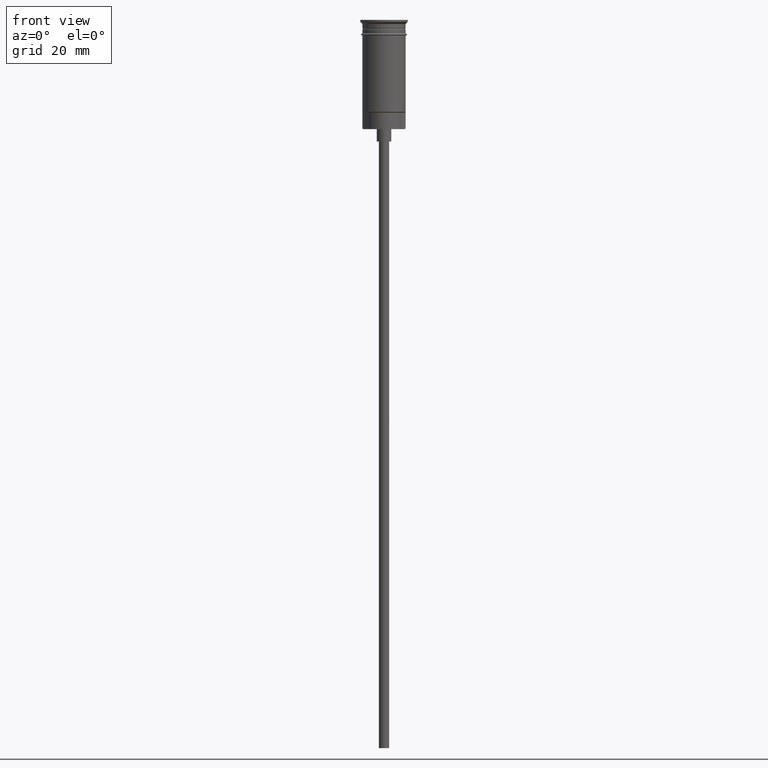
[diagram: clean part render]
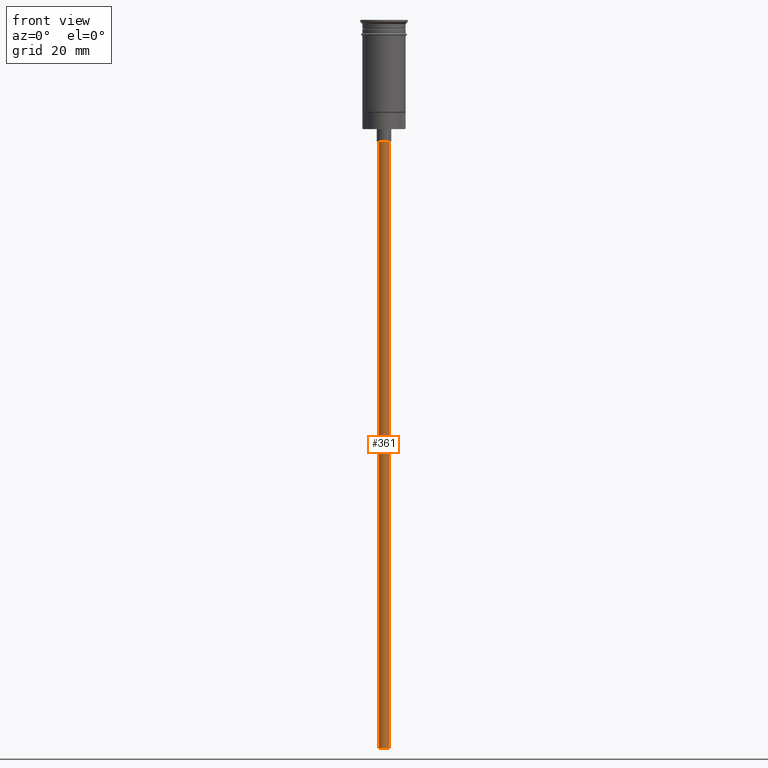
[diagram: same view with one face highlighted and labeled with its STEP entity id]
A machine part, front view. The second image highlights one B-rep face of the part: STEP entity #361.
In plain terms, the highlighted cylindrical surface (edge-blend (fillet) strip) has radius 1.25 mm, axis along (-0, -0, 1).
Its self-contained STEP definition (entity closure, byte-faithful):
#1 = EDGE_CURVE ( 'NONE', #1341, #152, #187, .T. ) ;
#6 = CARTESIAN_POINT ( 'NONE',  ( 1.250000000000000000, 0.000000000000000000, -176.5000000000000000 ) ) ;
#54 = EDGE_CURVE ( 'NONE', #1352, #152, #505, .T. ) ;
#138 = CARTESIAN_POINT ( 'NONE',  ( 1.250000000000000000, 0.000000000000000000, -176.5000000000000000 ) ) ;
#152 = VERTEX_POINT ( 'NONE', #487 ) ;
#187 = CIRCLE ( 'NONE', #1548, 1.250000000000000000 ) ;
#191 = AXIS2_PLACEMENT_3D ( 'NONE', #1373, #1423, #1406 ) ;
#232 = VECTOR ( 'NONE', #605, 1000.000000000000000 ) ;
#274 = CARTESIAN_POINT ( 'NONE',  ( 0.000000000000000000, 0.000000000000000000, -29.50000000000000000 ) ) ;
#361 = ADVANCED_FACE ( 'NONE', ( #918 ), #934, .T. ) ;
#379 = LINE ( 'NONE', #138, #232 ) ;
#487 = CARTESIAN_POINT ( 'NONE',  ( -1.250000000000000000, 1.530808498934191571E-16, -29.50000000000000000 ) ) ;
#505 = LINE ( 'NONE', #748, #1391 ) ;
#522 = ORIENTED_EDGE ( 'NONE', *, *, #1, .T. ) ;
#596 = DIRECTION ( 'NONE',  ( 0.000000000000000000, 0.000000000000000000, -1.000000000000000000 ) ) ;
#605 = DIRECTION ( 'NONE',  ( -0.000000000000000000, -0.000000000000000000, 1.000000000000000000 ) ) ;
#621 = VERTEX_POINT ( 'NONE', #6 ) ;
#725 = CIRCLE ( 'NONE', #1033, 1.250000000000000000 ) ;
#748 = CARTESIAN_POINT ( 'NONE',  ( -1.250000000000000000, 1.530808498934191571E-16, -176.5000000000000000 ) ) ;
#767 = DIRECTION ( 'NONE',  ( -1.000000000000000000, 0.000000000000000000, 0.000000000000000000 ) ) ;
#893 = DIRECTION ( 'NONE',  ( 0.000000000000000000, 0.000000000000000000, -1.000000000000000000 ) ) ;
#918 = FACE_OUTER_BOUND ( 'NONE', #1085, .T. ) ;
#934 = CYLINDRICAL_SURFACE ( 'NONE', #191, 1.250000000000000000 ) ;
#939 = EDGE_CURVE ( 'NONE', #621, #1352, #725, .T. ) ;
#961 = ORIENTED_EDGE ( 'NONE', *, *, #54, .F. ) ;
#1033 = AXIS2_PLACEMENT_3D ( 'NONE', #1319, #596, #1084 ) ;
#1084 = DIRECTION ( 'NONE',  ( -1.000000000000000000, 0.000000000000000000, 0.000000000000000000 ) ) ;
#1085 = EDGE_LOOP ( 'NONE', ( #961, #1296, #1545, #522 ) ) ;
#1177 = CARTESIAN_POINT ( 'NONE',  ( 1.250000000000000000, 0.000000000000000000, -29.50000000000000000 ) ) ;
#1296 = ORIENTED_EDGE ( 'NONE', *, *, #939, .F. ) ;
#1318 = CARTESIAN_POINT ( 'NONE',  ( -1.250000000000000000, 1.530808498934191571E-16, -176.5000000000000000 ) ) ;
#1319 = CARTESIAN_POINT ( 'NONE',  ( 0.000000000000000000, 0.000000000000000000, -176.5000000000000000 ) ) ;
#1341 = VERTEX_POINT ( 'NONE', #1177 ) ;
#1352 = VERTEX_POINT ( 'NONE', #1318 ) ;
#1373 = CARTESIAN_POINT ( 'NONE',  ( 0.000000000000000000, 0.000000000000000000, -176.5000000000000000 ) ) ;
#1381 = EDGE_CURVE ( 'NONE', #621, #1341, #379, .T. ) ;
#1391 = VECTOR ( 'NONE', #1474, 1000.000000000000000 ) ;
#1406 = DIRECTION ( 'NONE',  ( 1.000000000000000000, 0.000000000000000000, 0.000000000000000000 ) ) ;
#1423 = DIRECTION ( 'NONE',  ( -0.000000000000000000, -0.000000000000000000, 1.000000000000000000 ) ) ;
#1474 = DIRECTION ( 'NONE',  ( -0.000000000000000000, -0.000000000000000000, 1.000000000000000000 ) ) ;
#1545 = ORIENTED_EDGE ( 'NONE', *, *, #1381, .T. ) ;
#1548 = AXIS2_PLACEMENT_3D ( 'NONE', #274, #893, #767 ) ;